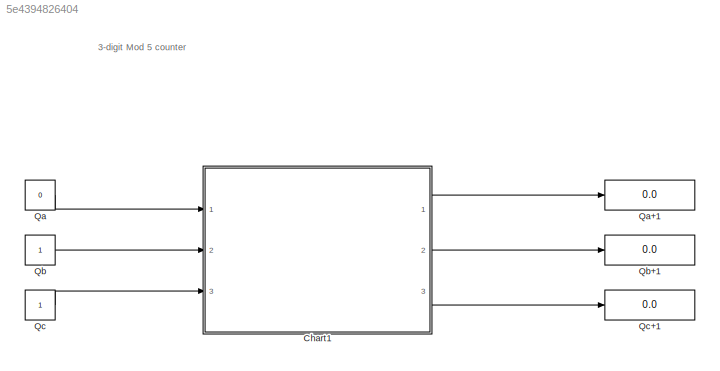
MODEL slx_5e4394826404
KIND model
CONFIG AbsTol = auto
CONFIG EnableMultiTasking = off
CONFIG FixedStep = auto
CONFIG MaxStep = auto
CONFIG MinStep = auto
CONFIG RelTol = 1e-3
CONFIG SampleTimeConstraint = Unconstrained
CONFIG SolverName = VariableStepAuto
CONFIG StartTime = 0.0
CONFIG StopTime = 10.0
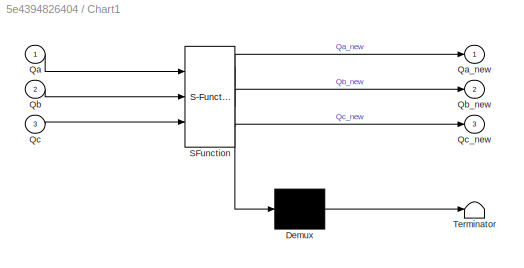
BLOCK [SubSystem] Chart1
  ErrorFcn = Stateflow.Translate.translate
  PermitHierarchicalResolution = ExplicitOnly
  Ports = [3, 3]
  RequestExecContextInheritance = off
  SFBlockType = Chart
  TreatAsAtomicUnit = on
BLOCK [Demux] Chart1/ Demux 
  Outputs = 1
  Ports = [1, 1]
BLOCK [S-Function] Chart1/ SFunction 
  EnableBusSupport = on
  FunctionName = sf_sfun
  PortCounts = [3 4]
  Ports = [3, 4]
  SFcnIsStateOwnerBlock = off
  SFunctionDeploymentMode = off
  Tag = Stateflow S-Function 1
BLOCK [Terminator] Chart1/ Terminator 
BLOCK [Inport] Chart1/Qa
BLOCK [Outport] Chart1/Qa_new
BLOCK [Inport] Chart1/Qb
  Port = 2
BLOCK [Outport] Chart1/Qb_new
  Port = 2
BLOCK [Inport] Chart1/Qc
  Port = 3
BLOCK [Outport] Chart1/Qc_new
  Port = 3
BLOCK [Constant] Qa
  Value = 0
BLOCK [Display] Qa+1
  Decimation = 1
  Ports = [1]
BLOCK [Constant] Qb
BLOCK [Display] Qb+1
  Decimation = 1
  Ports = [1]
BLOCK [Constant] Qc
BLOCK [Display] Qc+1
  Decimation = 1
  Ports = [1]
ANNOTATION (root): 3-digit Mod 5 counter
LINE Chart1:1 -> Qa+1:1
LINE Chart1:2 -> Qb+1:1
LINE Chart1:3 -> Qc+1:1
LINE Qa:1 -> Chart1:1
LINE Qb:1 -> Chart1:2
LINE Qc:1 -> Chart1:3
CHART Chart1 states=3 transitions=11
  STATE_LABEL 'Qa0'
  STATE_LABEL '% When Qa=0\n[Qa==0]'
  STATE_LABEL '[Qc==0]'
  STATE_LABEL '{Qa_new=0,Qb_new=Qb,Qc_new=1;}'
  STATE_LABEL '[Qb==1]{Qa_new=1,Qb_new=0,Qc_new=0;}'
  STATE_LABEL '[Qb==0]{Qa_new=0,Qb_new=1,Qc_new=0;}'
  STATE_LABEL 'Qa1\nentry:\nQa_new=0;\nQb_new=Qb;\nQc_new=Qc;'
  STATE_LABEL 'Qa2\nentry:\nQa_new=0;\nQb_new=0;\nQc_new=0;'
CHART  states=0 transitions=0
